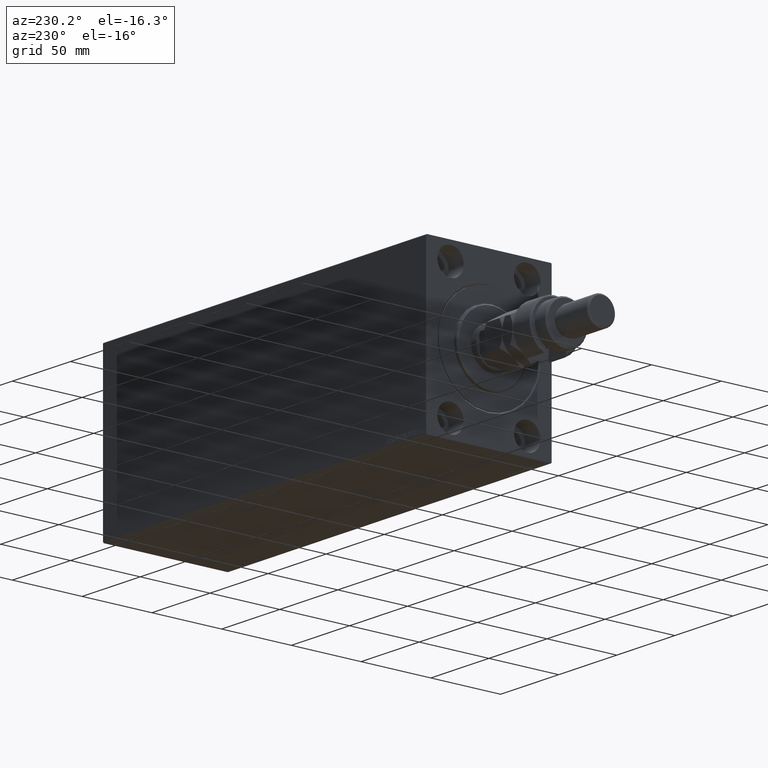
[diagram: clean part render]
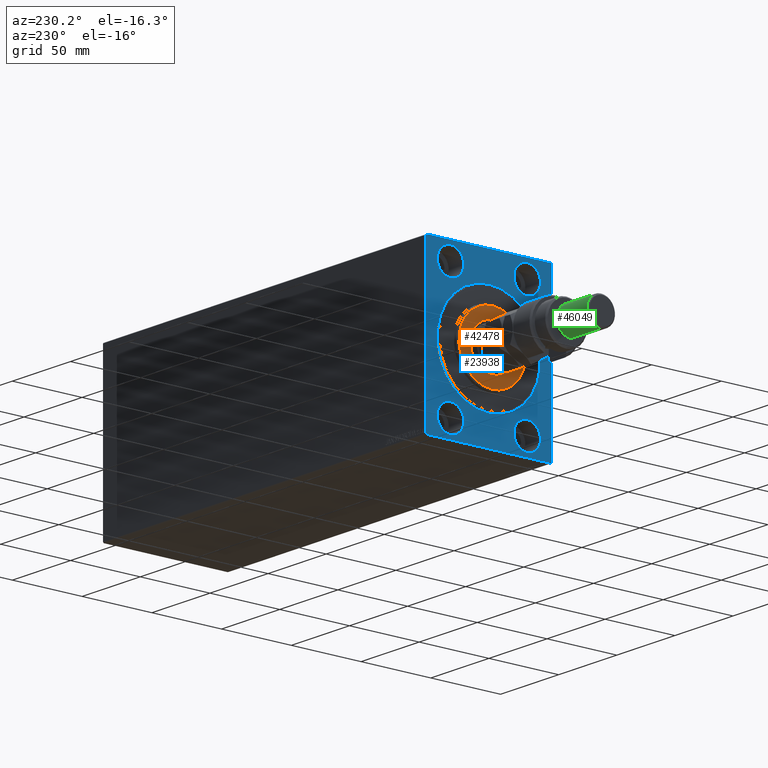
[diagram: same view with three faces highlighted in distinct colors, each labeled with its STEP entity id]
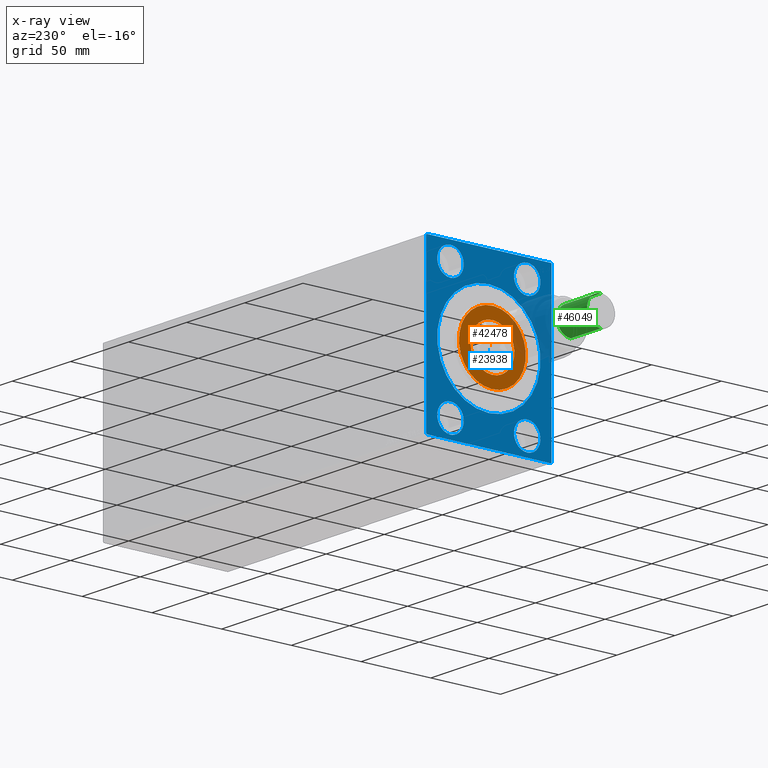
[diagram: x-ray of the same camera — body ghosted, the three highlighted faces saturated]
A machine part, auxiliary view with three faces highlighted in distinct colors.
The next image is the same camera in x-ray (body ghosted, the three faces saturated) — at least one of them is partly hidden behind the body in this view.
Their STEP definitions:

[orange] entity #42478 — the highlighted planar face has unit normal (-1, 0, 0).
#643 = VERTEX_POINT ( 'NONE', #4550 ) ;
#1379 = FACE_OUTER_BOUND ( 'NONE', #13734, .T. ) ;
#3429 = VERTEX_POINT ( 'NONE', #28608 ) ;
#4550 = CARTESIAN_POINT ( 'NONE',  ( 3.000000000000000000, 1.928818708657080950E-15, -15.75000000000000000 ) ) ;
#4773 = ORIENTED_EDGE ( 'NONE', *, *, #7529, .T. ) ;
#4921 = EDGE_CURVE ( 'NONE', #3429, #24974, #19787, .T. ) ;
#6834 = ORIENTED_EDGE ( 'NONE', *, *, #8691, .T. ) ;
#7182 = DIRECTION ( 'NONE',  ( 1.000000000000000000, -0.000000000000000000, 0.000000000000000000 ) ) ;
#7529 = EDGE_CURVE ( 'NONE', #24974, #3429, #15327, .T. ) ;
#7807 = EDGE_LOOP ( 'NONE', ( #6834, #31158 ) ) ;
#8466 = PLANE ( 'NONE',  #36704 ) ;
#8684 = CARTESIAN_POINT ( 'NONE',  ( 3.000000000000000000, 0.000000000000000000, 0.000000000000000000 ) ) ;
#8691 = EDGE_CURVE ( 'NONE', #43297, #643, #39448, .T. ) ;
#9628 = ORIENTED_EDGE ( 'NONE', *, *, #4921, .T. ) ;
#12008 = FACE_BOUND ( 'NONE', #7807, .T. ) ;
#12418 = CIRCLE ( 'NONE', #40278, 15.75000000000000000 ) ;
#13368 = DIRECTION ( 'NONE',  ( 0.000000000000000000, 0.000000000000000000, -1.000000000000000000 ) ) ;
#13734 = EDGE_LOOP ( 'NONE', ( #4773, #9628 ) ) ;
#15327 = CIRCLE ( 'NONE', #32638, 24.00000000000000711 ) ;
#15790 = DIRECTION ( 'NONE',  ( 0.000000000000000000, 0.000000000000000000, -1.000000000000000000 ) ) ;
#19558 = DIRECTION ( 'NONE',  ( 1.000000000000000000, -0.000000000000000000, 0.000000000000000000 ) ) ;
#19787 = CIRCLE ( 'NONE', #44624, 24.00000000000000711 ) ;
#19892 = DIRECTION ( 'NONE',  ( -1.000000000000000000, 0.000000000000000000, -0.000000000000000000 ) ) ;
#21587 = DIRECTION ( 'NONE',  ( 0.000000000000000000, 0.000000000000000000, -1.000000000000000000 ) ) ;
#21652 = CARTESIAN_POINT ( 'NONE',  ( 3.000000000000000000, 0.000000000000000000, 15.75000000000000000 ) ) ;
#24974 = VERTEX_POINT ( 'NONE', #36052 ) ;
#26659 = CARTESIAN_POINT ( 'NONE',  ( 3.000000000000000000, 0.000000000000000000, 0.000000000000000000 ) ) ;
#28608 = CARTESIAN_POINT ( 'NONE',  ( 3.000000000000000000, 3.000384657911015469E-15, -24.00000000000000711 ) ) ;
#30874 = DIRECTION ( 'NONE',  ( 0.000000000000000000, 0.000000000000000000, -1.000000000000000000 ) ) ;
#30980 = CARTESIAN_POINT ( 'NONE',  ( 3.000000000000000000, 0.000000000000000000, 0.000000000000000000 ) ) ;
#31158 = ORIENTED_EDGE ( 'NONE', *, *, #40228, .T. ) ;
#32638 = AXIS2_PLACEMENT_3D ( 'NONE', #39043, #46343, #13368 ) ;
#34402 = DIRECTION ( 'NONE',  ( -1.000000000000000000, 0.000000000000000000, -0.000000000000000000 ) ) ;
#36052 = CARTESIAN_POINT ( 'NONE',  ( 3.000000000000000000, 0.000000000000000000, 24.00000000000000711 ) ) ;
#36704 = AXIS2_PLACEMENT_3D ( 'NONE', #26659, #19558, #15790 ) ;
#39043 = CARTESIAN_POINT ( 'NONE',  ( 3.000000000000000000, 0.000000000000000000, 0.000000000000000000 ) ) ;
#39448 = CIRCLE ( 'NONE', #40189, 15.75000000000000000 ) ;
#40189 = AXIS2_PLACEMENT_3D ( 'NONE', #30980, #19892, #45107 ) ;
#40228 = EDGE_CURVE ( 'NONE', #643, #43297, #12418, .T. ) ;
#40278 = AXIS2_PLACEMENT_3D ( 'NONE', #8684, #34402, #30874 ) ;
#42478 = ADVANCED_FACE ( 'NONE', ( #1379, #12008 ), #8466, .T. ) ;
#43297 = VERTEX_POINT ( 'NONE', #21652 ) ;
#43728 = CARTESIAN_POINT ( 'NONE',  ( 3.000000000000000000, 0.000000000000000000, 0.000000000000000000 ) ) ;
#44624 = AXIS2_PLACEMENT_3D ( 'NONE', #43728, #7182, #21587 ) ;
#45107 = DIRECTION ( 'NONE',  ( 0.000000000000000000, 0.000000000000000000, -1.000000000000000000 ) ) ;
#46343 = DIRECTION ( 'NONE',  ( 1.000000000000000000, -0.000000000000000000, 0.000000000000000000 ) ) ;

[blue] entity #23938 — the highlighted planar face has unit normal (1, 0, 0).
#381 = DIRECTION ( 'NONE',  ( -1.000000000000000000, 0.000000000000000000, 0.000000000000000000 ) ) ;
#572 = CARTESIAN_POINT ( 'NONE',  ( 0.000000000000000000, 27.49999999999998934, -44.99999999999998579 ) ) ;
#726 = VERTEX_POINT ( 'NONE', #6828 ) ;
#845 = AXIS2_PLACEMENT_3D ( 'NONE', #7005, #3217, #18327 ) ;
#1071 = ORIENTED_EDGE ( 'NONE', *, *, #43850, .F. ) ;
#1093 = CARTESIAN_POINT ( 'NONE',  ( 0.000000000000000000, 0.000000000000000000, 0.000000000000000000 ) ) ;
#1630 = VECTOR ( 'NONE', #27638, 1000.000000000000000 ) ;
#1995 = AXIS2_PLACEMENT_3D ( 'NONE', #21286, #35663, #17726 ) ;
#2288 = DIRECTION ( 'NONE',  ( 0.000000000000000000, 0.000000000000000000, 1.000000000000000000 ) ) ;
#2605 = CARTESIAN_POINT ( 'NONE',  ( 0.000000000000000000, 27.49999999999998934, -54.49999999999998579 ) ) ;
#2626 = VERTEX_POINT ( 'NONE', #8224 ) ;
#2731 = DIRECTION ( 'NONE',  ( -1.000000000000000000, 0.000000000000000000, 0.000000000000000000 ) ) ;
#2840 = CIRCLE ( 'NONE', #34502, 9.500000000000001776 ) ;
#3019 = ORIENTED_EDGE ( 'NONE', *, *, #4731, .F. ) ;
#3217 = DIRECTION ( 'NONE',  ( -1.000000000000000000, 0.000000000000000000, 0.000000000000000000 ) ) ;
#3371 = LINE ( 'NONE', #17769, #33804 ) ;
#4434 = CARTESIAN_POINT ( 'NONE',  ( 0.000000000000000000, -27.50000000000000000, -35.49999999999998579 ) ) ;
#4605 = EDGE_CURVE ( 'NONE', #25164, #2626, #13408, .T. ) ;
#4731 = EDGE_CURVE ( 'NONE', #41111, #5564, #38577, .T. ) ;
#4831 = LINE ( 'NONE', #9074, #35224 ) ;
#5034 = EDGE_LOOP ( 'NONE', ( #1071, #24936 ) ) ;
#5518 = AXIS2_PLACEMENT_3D ( 'NONE', #17249, #6627, #10387 ) ;
#5564 = VERTEX_POINT ( 'NONE', #2605 ) ;
#6581 = CIRCLE ( 'NONE', #18746, 9.500000000000001776 ) ;
#6627 = DIRECTION ( 'NONE',  ( 1.000000000000000000, 0.000000000000000000, 0.000000000000000000 ) ) ;
#6649 = VECTOR ( 'NONE', #44774, 1000.000000000000000 ) ;
#6828 = CARTESIAN_POINT ( 'NONE',  ( 0.000000000000000000, 27.50000000000001066, 54.50000000000000711 ) ) ;
#6892 = ORIENTED_EDGE ( 'NONE', *, *, #29004, .F. ) ;
#6990 = VERTEX_POINT ( 'NONE', #8106 ) ;
#7005 = CARTESIAN_POINT ( 'NONE',  ( 0.000000000000000000, -27.50000000000000000, -44.99999999999998579 ) ) ;
#7095 = FACE_OUTER_BOUND ( 'NONE', #30735, .T. ) ;
#7327 = DIRECTION ( 'NONE',  ( 1.000000000000000000, 0.000000000000000000, 0.000000000000000000 ) ) ;
#8034 = VERTEX_POINT ( 'NONE', #11982 ) ;
#8089 = EDGE_CURVE ( 'NONE', #26043, #12136, #36430, .T. ) ;
#8106 = CARTESIAN_POINT ( 'NONE',  ( 0.000000000000000000, 27.50000000000001066, 35.50000000000000711 ) ) ;
#8224 = CARTESIAN_POINT ( 'NONE',  ( 0.000000000000000000, -44.50000000000000000, 57.49999999999999289 ) ) ;
#8310 = ORIENTED_EDGE ( 'NONE', *, *, #45424, .F. ) ;
#8512 = CIRCLE ( 'NONE', #46057, 37.00000000000008527 ) ;
#8681 = CARTESIAN_POINT ( 'NONE',  ( 0.000000000000000000, 45.00000000000001421, -56.99999999999997868 ) ) ;
#8908 = AXIS2_PLACEMENT_3D ( 'NONE', #572, #22299, #36910 ) ;
#9035 = EDGE_LOOP ( 'NONE', ( #3019, #8310 ) ) ;
#9074 = CARTESIAN_POINT ( 'NONE',  ( 0.000000000000000000, 45.00000000000001421, -56.99999999999997868 ) ) ;
#9716 = ORIENTED_EDGE ( 'NONE', *, *, #32932, .T. ) ;
#10387 = DIRECTION ( 'NONE',  ( 0.000000000000000000, 0.000000000000000000, -1.000000000000000000 ) ) ;
#11096 = FACE_BOUND ( 'NONE', #37468, .T. ) ;
#11253 = DIRECTION ( 'NONE',  ( 0.000000000000000000, 0.000000000000000000, 1.000000000000000000 ) ) ;
#11275 = AXIS2_PLACEMENT_3D ( 'NONE', #25507, #7327, #36104 ) ;
#11460 = ORIENTED_EDGE ( 'NONE', *, *, #32410, .F. ) ;
#11676 = CARTESIAN_POINT ( 'NONE',  ( 0.000000000000000000, 4.531193156845217837E-15, -37.00000000000008527 ) ) ;
#11982 = CARTESIAN_POINT ( 'NONE',  ( 0.000000000000000000, -44.50000000000000000, -57.50000000000000711 ) ) ;
#12020 = VERTEX_POINT ( 'NONE', #45373 ) ;
#12136 = VERTEX_POINT ( 'NONE', #18104 ) ;
#12302 = ORIENTED_EDGE ( 'NONE', *, *, #33571, .T. ) ;
#13051 = ORIENTED_EDGE ( 'NONE', *, *, #37239, .T. ) ;
#13408 = LINE ( 'NONE', #41931, #41625 ) ;
#13962 = EDGE_CURVE ( 'NONE', #42539, #28041, #2840, .T. ) ;
#14153 = LINE ( 'NONE', #28555, #39297 ) ;
#14169 = FACE_BOUND ( 'NONE', #5034, .T. ) ;
#14402 = FACE_BOUND ( 'NONE', #19566, .T. ) ;
#17027 = EDGE_CURVE ( 'NONE', #38775, #37689, #23094, .T. ) ;
#17222 = LINE ( 'NONE', #34935, #1630 ) ;
#17249 = CARTESIAN_POINT ( 'NONE',  ( 0.000000000000000000, 0.000000000000000000, 0.000000000000000000 ) ) ;
#17461 = CIRCLE ( 'NONE', #845, 9.500000000000001776 ) ;
#17726 = DIRECTION ( 'NONE',  ( 0.000000000000000000, 0.000000000000000000, 1.000000000000000000 ) ) ;
#17769 = CARTESIAN_POINT ( 'NONE',  ( 0.000000000000000000, -45.00000000000000000, -57.50000000000000711 ) ) ;
#17772 = EDGE_CURVE ( 'NONE', #6990, #726, #6581, .T. ) ;
#18104 = CARTESIAN_POINT ( 'NONE',  ( 0.000000000000000000, -27.49999999999998934, 54.50000000000000711 ) ) ;
#18327 = DIRECTION ( 'NONE',  ( 0.000000000000000000, 0.000000000000000000, 1.000000000000000000 ) ) ;
#18746 = AXIS2_PLACEMENT_3D ( 'NONE', #42725, #27927, #32152 ) ;
#19566 = EDGE_LOOP ( 'NONE', ( #24698, #20272 ) ) ;
#20272 = ORIENTED_EDGE ( 'NONE', *, *, #8089, .F. ) ;
#20612 = DIRECTION ( 'NONE',  ( 0.000000000000000000, 0.000000000000000000, -1.000000000000000000 ) ) ;
#20696 = CARTESIAN_POINT ( 'NONE',  ( 0.000000000000000000, -27.49999999999998934, 45.00000000000000711 ) ) ;
#20814 = CARTESIAN_POINT ( 'NONE',  ( 0.000000000000000000, 27.49999999999998934, -35.49999999999998579 ) ) ;
#21226 = ORIENTED_EDGE ( 'NONE', *, *, #17027, .F. ) ;
#21286 = CARTESIAN_POINT ( 'NONE',  ( 0.000000000000000000, -27.49999999999998934, 45.00000000000000711 ) ) ;
#21337 = CIRCLE ( 'NONE', #5518, 37.00000000000008527 ) ;
#22246 = ORIENTED_EDGE ( 'NONE', *, *, #13962, .F. ) ;
#22299 = DIRECTION ( 'NONE',  ( -1.000000000000000000, 0.000000000000000000, 0.000000000000000000 ) ) ;
#22782 = DIRECTION ( 'NONE',  ( 0.000000000000000000, -0.7071067811865279218, -0.7071067811865672237 ) ) ;
#22877 = LINE ( 'NONE', #30188, #38944 ) ;
#22896 = DIRECTION ( 'NONE',  ( -1.000000000000000000, 0.000000000000000000, 0.000000000000000000 ) ) ;
#23094 = LINE ( 'NONE', #30406, #6649 ) ;
#23346 = CARTESIAN_POINT ( 'NONE',  ( 0.000000000000000000, 0.000000000000000000, 37.00000000000008527 ) ) ;
#23602 = DIRECTION ( 'NONE',  ( 0.000000000000000000, 0.000000000000000000, 1.000000000000000000 ) ) ;
#23938 = ADVANCED_FACE ( 'NONE', ( #11096, #28334, #14402, #14169, #42923, #7095 ), #35407, .F. ) ;
#24335 = DIRECTION ( 'NONE',  ( -0.000000000000000000, -0.7071067811865671127, 0.7071067811865279218 ) ) ;
#24632 = DIRECTION ( 'NONE',  ( 0.000000000000000000, 1.000000000000000000, 0.000000000000000000 ) ) ;
#24698 = ORIENTED_EDGE ( 'NONE', *, *, #41347, .F. ) ;
#24936 = ORIENTED_EDGE ( 'NONE', *, *, #17772, .F. ) ;
#25164 = VERTEX_POINT ( 'NONE', #41663 ) ;
#25507 = CARTESIAN_POINT ( 'NONE',  ( 0.000000000000000000, 0.000000000000000000, 0.000000000000000000 ) ) ;
#25661 = CARTESIAN_POINT ( 'NONE',  ( 0.000000000000000000, 27.49999999999998934, -44.99999999999998579 ) ) ;
#26043 = VERTEX_POINT ( 'NONE', #39665 ) ;
#26176 = ORIENTED_EDGE ( 'NONE', *, *, #44239, .T. ) ;
#26435 = CARTESIAN_POINT ( 'NONE',  ( 0.000000000000000000, 27.50000000000001066, 45.00000000000000711 ) ) ;
#27294 = VECTOR ( 'NONE', #43385, 1000.000000000000000 ) ;
#27341 = AXIS2_PLACEMENT_3D ( 'NONE', #25661, #381, #11253 ) ;
#27385 = VERTEX_POINT ( 'NONE', #29961 ) ;
#27638 = DIRECTION ( 'NONE',  ( 0.000000000000000000, 0.000000000000000000, -1.000000000000000000 ) ) ;
#27811 = DIRECTION ( 'NONE',  ( -0.000000000000000000, 0.7071067811865279218, 0.7071067811865671127 ) ) ;
#27927 = DIRECTION ( 'NONE',  ( -1.000000000000000000, 0.000000000000000000, 0.000000000000000000 ) ) ;
#28041 = VERTEX_POINT ( 'NONE', #4434 ) ;
#28334 = FACE_BOUND ( 'NONE', #9035, .T. ) ;
#28382 = ORIENTED_EDGE ( 'NONE', *, *, #42484, .F. ) ;
#28555 = CARTESIAN_POINT ( 'NONE',  ( 0.000000000000000000, -44.50000000000000000, -57.50000000000000711 ) ) ;
#29004 = EDGE_CURVE ( 'NONE', #28041, #42539, #17461, .T. ) ;
#29255 = CARTESIAN_POINT ( 'NONE',  ( 0.000000000000000000, 44.50000000000000000, 57.50000000000000711 ) ) ;
#29797 = VERTEX_POINT ( 'NONE', #23346 ) ;
#29961 = CARTESIAN_POINT ( 'NONE',  ( 0.000000000000000000, 44.50000000000000000, 57.50000000000000711 ) ) ;
#30188 = CARTESIAN_POINT ( 'NONE',  ( 0.000000000000000000, 45.00000000000000000, 57.50000000000000711 ) ) ;
#30406 = CARTESIAN_POINT ( 'NONE',  ( 0.000000000000000000, 45.00000000000001421, -57.50000000000000711 ) ) ;
#30735 = EDGE_LOOP ( 'NONE', ( #11460, #33852, #28382, #12302, #21226, #26176, #39008, #32613 ) ) ;
#31484 = CARTESIAN_POINT ( 'NONE',  ( 0.000000000000000000, 45.00000000000000000, 57.00000000000000711 ) ) ;
#32152 = DIRECTION ( 'NONE',  ( 0.000000000000000000, 0.000000000000000000, 1.000000000000000000 ) ) ;
#32410 = EDGE_CURVE ( 'NONE', #25164, #12020, #17222, .T. ) ;
#32551 = EDGE_LOOP ( 'NONE', ( #6892, #22246 ) ) ;
#32613 = ORIENTED_EDGE ( 'NONE', *, *, #33446, .T. ) ;
#32932 = EDGE_CURVE ( 'NONE', #44216, #29797, #8512, .T. ) ;
#33446 = EDGE_CURVE ( 'NONE', #8034, #12020, #14153, .T. ) ;
#33571 = EDGE_CURVE ( 'NONE', #27385, #37689, #39854, .T. ) ;
#33804 = VECTOR ( 'NONE', #24632, 1000.000000000000000 ) ;
#33852 = ORIENTED_EDGE ( 'NONE', *, *, #4605, .T. ) ;
#34502 = AXIS2_PLACEMENT_3D ( 'NONE', #35759, #2731, #46585 ) ;
#34935 = CARTESIAN_POINT ( 'NONE',  ( 0.000000000000000000, -45.00000000000000000, 57.49999999999999289 ) ) ;
#35224 = VECTOR ( 'NONE', #22782, 1000.000000000000000 ) ;
#35407 = PLANE ( 'NONE',  #11275 ) ;
#35663 = DIRECTION ( 'NONE',  ( -1.000000000000000000, 0.000000000000000000, 0.000000000000000000 ) ) ;
#35690 = AXIS2_PLACEMENT_3D ( 'NONE', #20696, #41904, #2288 ) ;
#35759 = CARTESIAN_POINT ( 'NONE',  ( 0.000000000000000000, -27.50000000000000000, -44.99999999999998579 ) ) ;
#36002 = CIRCLE ( 'NONE', #8908, 9.500000000000001776 ) ;
#36104 = DIRECTION ( 'NONE',  ( 0.000000000000000000, 0.000000000000000000, -1.000000000000000000 ) ) ;
#36249 = CARTESIAN_POINT ( 'NONE',  ( 0.000000000000000000, 44.49999999999998579, -57.50000000000000711 ) ) ;
#36430 = CIRCLE ( 'NONE', #35690, 9.500000000000001776 ) ;
#36910 = DIRECTION ( 'NONE',  ( 0.000000000000000000, 0.000000000000000000, 1.000000000000000000 ) ) ;
#37239 = EDGE_CURVE ( 'NONE', #29797, #44216, #21337, .T. ) ;
#37422 = CIRCLE ( 'NONE', #1995, 9.500000000000001776 ) ;
#37468 = EDGE_LOOP ( 'NONE', ( #13051, #9716 ) ) ;
#37689 = VERTEX_POINT ( 'NONE', #31484 ) ;
#38513 = DIRECTION ( 'NONE',  ( 1.000000000000000000, 0.000000000000000000, 0.000000000000000000 ) ) ;
#38577 = CIRCLE ( 'NONE', #27341, 9.500000000000001776 ) ;
#38775 = VERTEX_POINT ( 'NONE', #8681 ) ;
#38944 = VECTOR ( 'NONE', #44555, 1000.000000000000000 ) ;
#39008 = ORIENTED_EDGE ( 'NONE', *, *, #46414, .F. ) ;
#39297 = VECTOR ( 'NONE', #24335, 1000.000000000000000 ) ;
#39665 = CARTESIAN_POINT ( 'NONE',  ( 0.000000000000000000, -27.49999999999998934, 35.50000000000000711 ) ) ;
#39854 = LINE ( 'NONE', #29255, #27294 ) ;
#40229 = CARTESIAN_POINT ( 'NONE',  ( 0.000000000000000000, -27.50000000000000000, -54.49999999999998579 ) ) ;
#41111 = VERTEX_POINT ( 'NONE', #20814 ) ;
#41264 = AXIS2_PLACEMENT_3D ( 'NONE', #26435, #22896, #23602 ) ;
#41347 = EDGE_CURVE ( 'NONE', #12136, #26043, #37422, .T. ) ;
#41625 = VECTOR ( 'NONE', #27811, 1000.000000000000000 ) ;
#41663 = CARTESIAN_POINT ( 'NONE',  ( 0.000000000000000000, -45.00000000000000000, 56.99999999999999289 ) ) ;
#41743 = VERTEX_POINT ( 'NONE', #36249 ) ;
#41904 = DIRECTION ( 'NONE',  ( -1.000000000000000000, 0.000000000000000000, 0.000000000000000000 ) ) ;
#41931 = CARTESIAN_POINT ( 'NONE',  ( 0.000000000000000000, -45.00000000000000000, 56.99999999999999289 ) ) ;
#42484 = EDGE_CURVE ( 'NONE', #27385, #2626, #22877, .T. ) ;
#42539 = VERTEX_POINT ( 'NONE', #40229 ) ;
#42725 = CARTESIAN_POINT ( 'NONE',  ( 0.000000000000000000, 27.50000000000001066, 45.00000000000000711 ) ) ;
#42923 = FACE_BOUND ( 'NONE', #32551, .T. ) ;
#43385 = DIRECTION ( 'NONE',  ( -0.000000000000000000, 0.7071067811865671127, -0.7071067811865279218 ) ) ;
#43494 = CIRCLE ( 'NONE', #41264, 9.500000000000001776 ) ;
#43850 = EDGE_CURVE ( 'NONE', #726, #6990, #43494, .T. ) ;
#44216 = VERTEX_POINT ( 'NONE', #11676 ) ;
#44239 = EDGE_CURVE ( 'NONE', #38775, #41743, #4831, .T. ) ;
#44555 = DIRECTION ( 'NONE',  ( 0.000000000000000000, -1.000000000000000000, -1.541976423090495387E-16 ) ) ;
#44774 = DIRECTION ( 'NONE',  ( 0.000000000000000000, -1.206764157201257045E-16, 1.000000000000000000 ) ) ;
#45373 = CARTESIAN_POINT ( 'NONE',  ( 0.000000000000000000, -45.00000000000000000, -57.00000000000003553 ) ) ;
#45424 = EDGE_CURVE ( 'NONE', #5564, #41111, #36002, .T. ) ;
#46057 = AXIS2_PLACEMENT_3D ( 'NONE', #1093, #38513, #20612 ) ;
#46414 = EDGE_CURVE ( 'NONE', #8034, #41743, #3371, .T. ) ;
#46585 = DIRECTION ( 'NONE',  ( 0.000000000000000000, 0.000000000000000000, 1.000000000000000000 ) ) ;

[green] entity #46049 — the highlighted cylindrical surface (edge-blend (fillet) strip) has radius 10 mm, axis along (1, -0, -0).
#2722 = LINE ( 'NONE', #27994, #22398 ) ;
#3051 = VERTEX_POINT ( 'NONE', #46093 ) ;
#3753 = ORIENTED_EDGE ( 'NONE', *, *, #25131, .F. ) ;
#6281 = LINE ( 'NONE', #20444, #36922 ) ;
#6579 = EDGE_LOOP ( 'NONE', ( #28855, #27891, #44202, #3753 ) ) ;
#8370 = CARTESIAN_POINT ( 'NONE',  ( 0.000000000000000000, 0.000000000000000000, 29.00000000000000711 ) ) ;
#10762 = CARTESIAN_POINT ( 'NONE',  ( 0.000000000000000000, 0.000000000000000000, 54.99999999999998579 ) ) ;
#13154 = FACE_OUTER_BOUND ( 'NONE', #6579, .T. ) ;
#13284 = EDGE_CURVE ( 'NONE', #21760, #43398, #2722, .T. ) ;
#15528 = VERTEX_POINT ( 'NONE', #40685 ) ;
#16459 = CYLINDRICAL_SURFACE ( 'NONE', #31546, 10.00000000000000000 ) ;
#16924 = DIRECTION ( 'NONE',  ( -0.000000000000000000, -0.000000000000000000, -1.000000000000000000 ) ) ;
#20444 = CARTESIAN_POINT ( 'NONE',  ( -10.00000000000000000, 0.000000000000000000, 56.00000000000000711 ) ) ;
#20673 = DIRECTION ( 'NONE',  ( -0.000000000000000000, -0.000000000000000000, -1.000000000000000000 ) ) ;
#21760 = VERTEX_POINT ( 'NONE', #44557 ) ;
#22398 = VECTOR ( 'NONE', #42344, 1000.000000000000000 ) ;
#22538 = DIRECTION ( 'NONE',  ( -0.000000000000000000, -0.000000000000000000, 1.000000000000000000 ) ) ;
#24712 = DIRECTION ( 'NONE',  ( 1.000000000000000000, 0.000000000000000000, 0.000000000000000000 ) ) ;
#25114 = CIRCLE ( 'NONE', #40175, 10.00000000000000000 ) ;
#25131 = EDGE_CURVE ( 'NONE', #3051, #15528, #6281, .T. ) ;
#25412 = DIRECTION ( 'NONE',  ( 0.000000000000000000, 0.000000000000000000, -1.000000000000000000 ) ) ;
#27891 = ORIENTED_EDGE ( 'NONE', *, *, #13284, .T. ) ;
#27994 = CARTESIAN_POINT ( 'NONE',  ( 10.00000000000000000, 1.224646799147353256E-15, 56.00000000000000711 ) ) ;
#28855 = ORIENTED_EDGE ( 'NONE', *, *, #30811, .T. ) ;
#30811 = EDGE_CURVE ( 'NONE', #3051, #21760, #31855, .T. ) ;
#31546 = AXIS2_PLACEMENT_3D ( 'NONE', #34855, #16924, #45455 ) ;
#31855 = CIRCLE ( 'NONE', #34118, 10.00000000000000000 ) ;
#34118 = AXIS2_PLACEMENT_3D ( 'NONE', #10762, #25412, #24712 ) ;
#34855 = CARTESIAN_POINT ( 'NONE',  ( 0.000000000000000000, 0.000000000000000000, 56.00000000000000711 ) ) ;
#36798 = EDGE_CURVE ( 'NONE', #43398, #15528, #25114, .T. ) ;
#36922 = VECTOR ( 'NONE', #20673, 1000.000000000000000 ) ;
#40175 = AXIS2_PLACEMENT_3D ( 'NONE', #8370, #22538, #41153 ) ;
#40685 = CARTESIAN_POINT ( 'NONE',  ( -10.00000000000000000, 0.000000000000000000, 29.00000000000000711 ) ) ;
#41153 = DIRECTION ( 'NONE',  ( 1.000000000000000000, 0.000000000000000000, 0.000000000000000000 ) ) ;
#42344 = DIRECTION ( 'NONE',  ( -0.000000000000000000, -0.000000000000000000, -1.000000000000000000 ) ) ;
#43398 = VERTEX_POINT ( 'NONE', #44971 ) ;
#44202 = ORIENTED_EDGE ( 'NONE', *, *, #36798, .T. ) ;
#44557 = CARTESIAN_POINT ( 'NONE',  ( 10.00000000000000000, 1.224646799147353256E-15, 54.99999999999998579 ) ) ;
#44971 = CARTESIAN_POINT ( 'NONE',  ( 10.00000000000000000, 1.224646799147353256E-15, 29.00000000000000711 ) ) ;
#45455 = DIRECTION ( 'NONE',  ( -1.000000000000000000, 0.000000000000000000, 0.000000000000000000 ) ) ;
#46049 = ADVANCED_FACE ( 'NONE', ( #13154 ), #16459, .T. ) ;
#46093 = CARTESIAN_POINT ( 'NONE',  ( -10.00000000000000000, 0.000000000000000000, 54.99999999999998579 ) ) ;